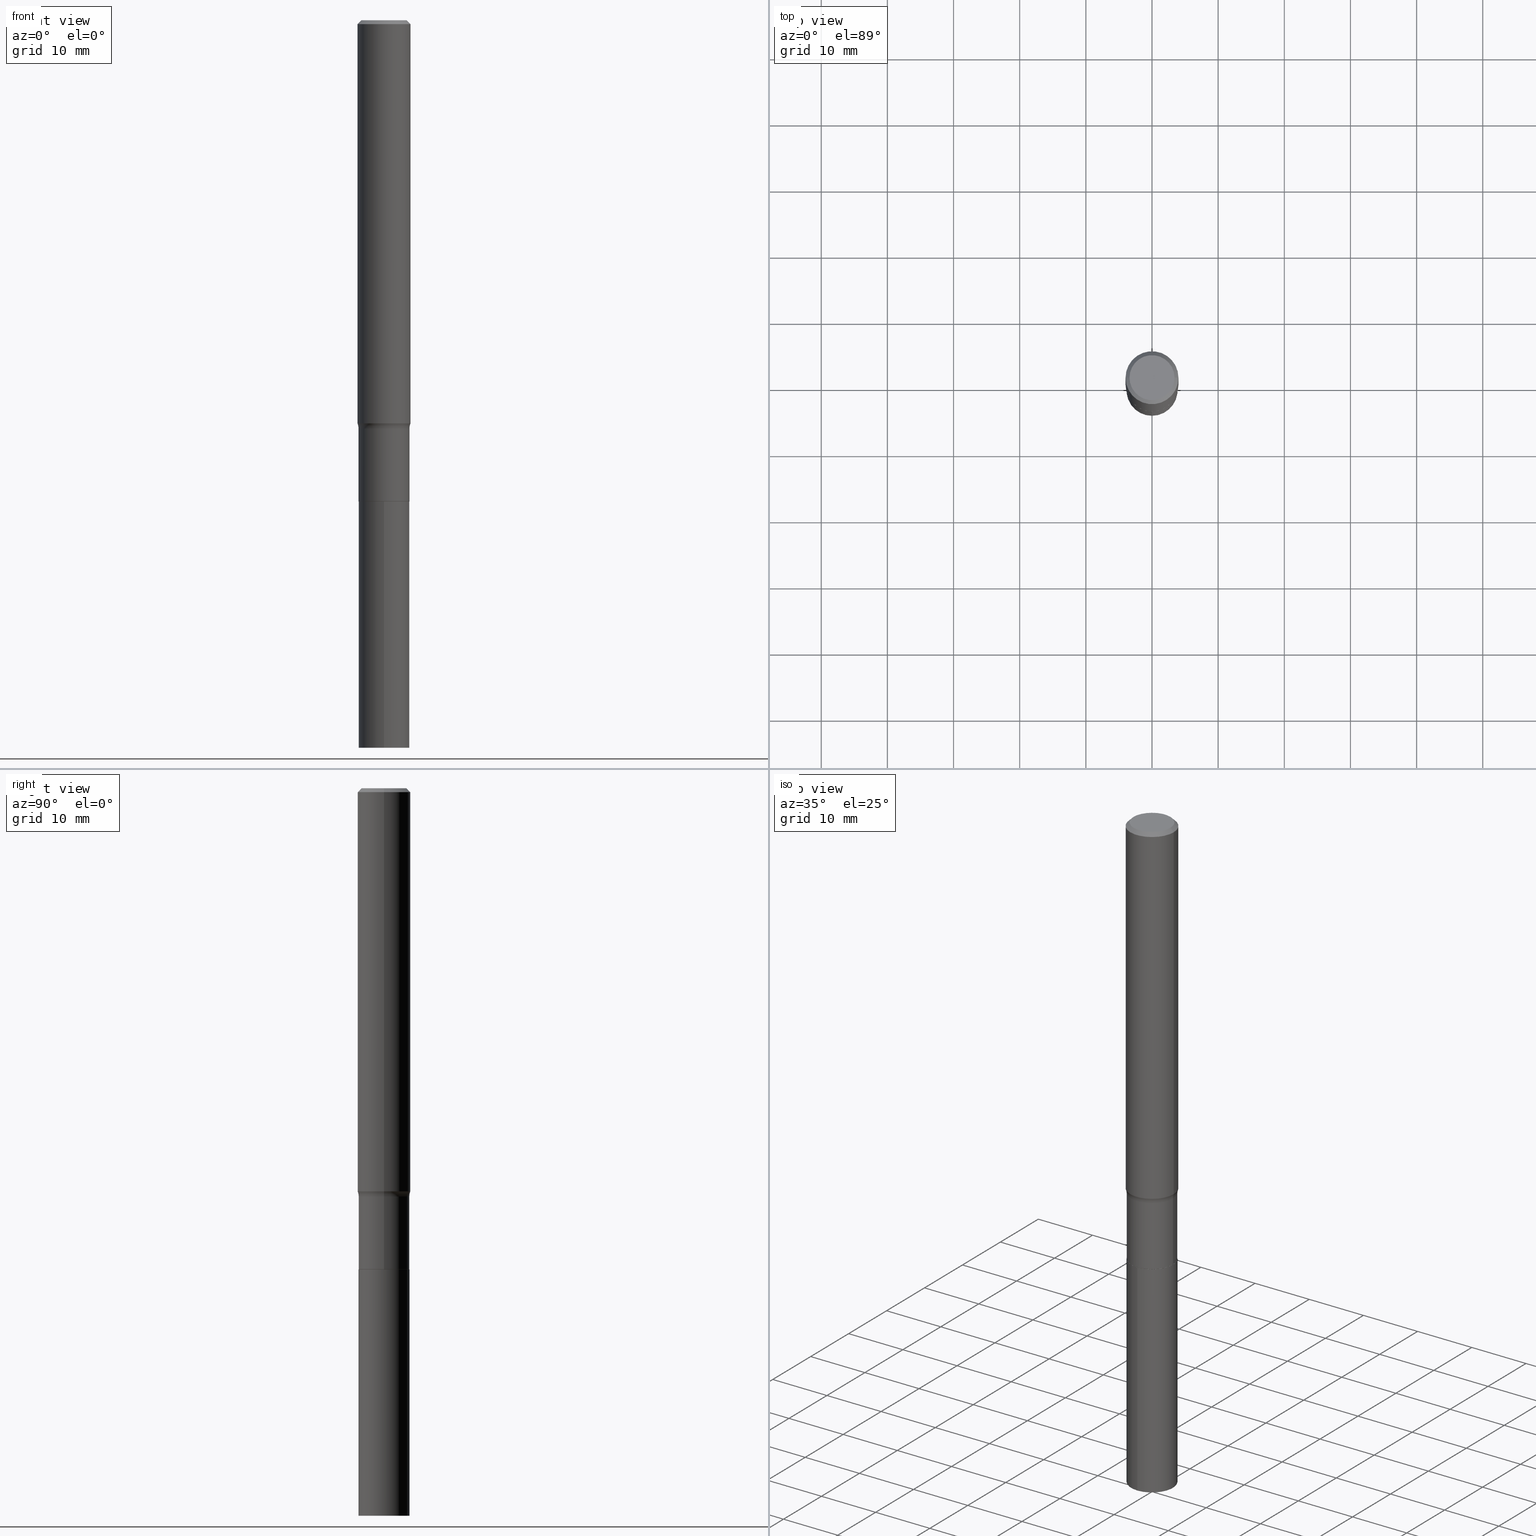
[diagram: canonical four-view strip — front | top / right | iso, engineering-drawing reading convention]
A machine part, canonical four-view strip (front | top / right | iso — engineering-drawing reading convention). The complete STEP part file that produces these views, byte-faithful:
ISO-10303-21;
HEADER;
FILE_DESCRIPTION (( 'STEP AP203' ),
    '1' );
FILE_NAME ('67865.STEP',
    '2024-04-19T16:48:36',
    ( '' ),
    ( '' ),
    'SwSTEP 2.0',
    'SolidWorks 2023',
    '' );
FILE_SCHEMA (( 'CONFIG_CONTROL_DESIGN' ));
ENDSEC;

DATA;
#1 = VERTEX_POINT ( 'NONE', #284 ) ;
#2 = DIRECTION ( 'NONE',  ( -2.445421097204986906E-29, 3.491549660818146744E-15, 1.000000000000000000 ) ) ;
#3 = ORIENTED_EDGE ( 'NONE', *, *, #176, .F. ) ;
#4 = FACE_OUTER_BOUND ( 'NONE', #205, .T. ) ;
#5 = VECTOR ( 'NONE', #112, 39.37007874015748143 ) ;
#6 = AXIS2_PLACEMENT_3D ( 'NONE', #221, #189, #115 ) ;
#7 = EDGE_LOOP ( 'NONE', ( #181, #404, #34, #164 ) ) ;
#8 = ORIENTED_EDGE ( 'NONE', *, *, #351, .F. ) ;
#9 = PLANE ( 'NONE',  #209 ) ;
#10 = MANIFOLD_SOLID_BREP ( 'Body-Move/Copy2[2]', #86 ) ;
#11 = MANIFOLD_SOLID_BREP ( 'Body-Move/Copy2[1]', #143 ) ;
#12 = DIRECTION ( 'NONE',  ( 1.000000000000000000, -6.982962677686268288E-15, 0.000000000000000000 ) ) ;
#13 = LINE ( 'NONE', #228, #144 ) ;
#14 = DIRECTION ( 'NONE',  ( 1.000000000000000000, -6.982962677686268288E-15, 0.000000000000000000 ) ) ;
#15 = CARTESIAN_POINT ( 'NONE',  ( 0.000000000000000000, 0.000000000000000000, 0.000000000000000000 ) ) ;
#16 = CARTESIAN_POINT ( 'NONE',  ( -0.1575000000000001399, 1.119104808822158787E-15, -7.747322767151482590E-30 ) ) ;
#17 = APPROVAL_STATUS ( 'not_yet_approved' ) ;
#18 = CONICAL_SURFACE ( 'NONE', #55, 0.1510499999999999898, 0.7853981633967311859 ) ;
#19 = PERSON_AND_ORGANIZATION ( #421, #420 ) ;
#20 = DATE_AND_TIME ( #380, #422 ) ;
#21 = CYLINDRICAL_SURFACE ( 'NONE', #430, 0.1515499999999999903 ) ;
#22 = ORIENTED_EDGE ( 'NONE', *, *, #362, .T. ) ;
#23 = EDGE_CURVE ( 'NONE', #253, #245, #345, .T. ) ;
#24 = DIRECTION ( 'NONE',  ( -0.7071067811860403118, 7.493145998868519270E-15, 0.7071067811870545006 ) ) ;
#25 = AXIS2_PLACEMENT_3D ( 'NONE', #182, #231, #151 ) ;
#26 = DIRECTION ( 'NONE',  ( 7.105427357601001859E-15, 1.000000000000000000, -3.491481338843145583E-15 ) ) ;
#27 = ORIENTED_EDGE ( 'NONE', *, *, #78, .F. ) ;
#28 = DIRECTION ( 'NONE',  ( -6.982962677686265922E-15, -1.000000000000000000, 3.491549660818146744E-15 ) ) ;
#29 = EDGE_CURVE ( 'NONE', #248, #220, #289, .T. ) ;
#30 = ORIENTED_EDGE ( 'NONE', *, *, #408, .T. ) ;
#31 = CYLINDRICAL_SURFACE ( 'NONE', #70, 0.1515499999999999625 ) ;
#32 = AXIS2_PLACEMENT_3D ( 'NONE', #82, #223, #361 ) ;
#33 = DIRECTION ( 'NONE',  ( -2.445468806185136597E-29, 3.491481338843145583E-15, 1.000000000000000000 ) ) ;
#34 = ORIENTED_EDGE ( 'NONE', *, *, #23, .T. ) ;
#35 = DIRECTION ( 'NONE',  ( -2.445421097204986906E-29, 3.491549660818146744E-15, 1.000000000000000000 ) ) ;
#36 = ORIENTED_EDGE ( 'NONE', *, *, #132, .T. ) ;
#37 = PRODUCT_RELATED_PRODUCT_CATEGORY ( 'detail', '', ( #208 ) ) ;
#38 = DIRECTION ( 'NONE',  ( 1.000000000000000000, 0.000000000000000000, 0.000000000000000000 ) ) ;
#39 = DIRECTION ( 'NONE',  ( 1.000000000000000000, -6.982962677686270655E-15, 0.000000000000000000 ) ) ;
#40 = AXIS2_PLACEMENT_3D ( 'NONE', #275, #204, #266 ) ;
#41 = APPROVAL_PERSON_ORGANIZATION ( #456, #433, #375 ) ;
#42 = ORIENTED_EDGE ( 'NONE', *, *, #271, .F. ) ;
#43 = FACE_OUTER_BOUND ( 'NONE', #215, .T. ) ;
#44 = EDGE_CURVE ( 'NONE', #58, #248, #218, .T. ) ;
#45 = ORIENTED_EDGE ( 'NONE', *, *, #187, .F. ) ;
#46 = DIRECTION ( 'NONE',  ( 6.982962677686265922E-15, 1.000000000000000000, -3.491549660818146744E-15 ) ) ;
#47 = LINE ( 'NONE', #241, #127 ) ;
#48 = DIRECTION ( 'NONE',  ( 1.000000000000000000, -6.982962677686264344E-15, 0.000000000000000000 ) ) ;
#49 = CIRCLE ( 'NONE', #103, 0.1575000000000002787 ) ;
#50 = SECURITY_CLASSIFICATION ( '', '', #457 ) ;
#51 = DATE_AND_TIME ( #239, #136 ) ;
#52 = APPROVAL_DATE_TIME ( #20, #214 ) ;
#53 = ADVANCED_FACE ( 'NONE', ( #222 ), #388, .T. ) ;
#54 = DATE_TIME_ROLE ( 'classification_date' ) ;
#55 = AXIS2_PLACEMENT_3D ( 'NONE', #106, #252, #389 ) ;
#56 = CALENDAR_DATE ( 2024, 19, 4 ) ;
#57 = ADVANCED_FACE ( 'NONE', ( #113 ), #183, .T. ) ;
#58 = VERTEX_POINT ( 'NONE', #442 ) ;
#59 = FACE_OUTER_BOUND ( 'NONE', #67, .T. ) ;
#60 = ORIENTED_EDGE ( 'NONE', *, *, #443, .T. ) ;
#61 = FACE_OUTER_BOUND ( 'NONE', #427, .T. ) ;
#62 = ORIENTED_EDGE ( 'NONE', *, *, #108, .F. ) ;
#63 = AXIS2_PLACEMENT_3D ( 'NONE', #360, #435, #39 ) ;
#64 = EDGE_CURVE ( 'NONE', #212, #283, #402, .T. ) ;
#65 = DIRECTION ( 'NONE',  ( -6.982962677686265922E-15, -1.000000000000000000, 3.605210153301568306E-15 ) ) ;
#66 = DIRECTION ( 'NONE',  ( 0.7071067811860403118, -2.468850131076945266E-15, 0.7071067811870545006 ) ) ;
#67 = EDGE_LOOP ( 'NONE', ( #190, #45, #105, #30 ) ) ;
#68 = DIRECTION ( 'NONE',  ( -6.982962677686266711E-15, -1.000000000000000000, 3.491481338843145583E-15 ) ) ;
#69 = ORIENTED_EDGE ( 'NONE', *, *, #78, .T. ) ;
#70 = AXIS2_PLACEMENT_3D ( 'NONE', #312, #137, #357 ) ;
#71 = CARTESIAN_POINT ( 'NONE',  ( 7.005534489078562059E-29, -1.000204659138396250E-14, -2.864700000000000912 ) ) ;
#72 = ORIENTED_EDGE ( 'NONE', *, *, #23, .F. ) ;
#73 = CC_DESIGN_DATE_AND_TIME_ASSIGNMENT ( #305, #54, ( #50 ) ) ;
#74 = DIRECTION ( 'NONE',  ( 1.000000000000000000, -6.982962677686268288E-15, 0.000000000000000000 ) ) ;
#75 = DIRECTION ( 'NONE',  ( -2.445468806185136597E-29, 3.491481338843145583E-15, 1.000000000000000000 ) ) ;
#76 = CARTESIAN_POINT ( 'NONE',  ( -1.058267993803283515E-15, -0.1515500000000099823, -2.864700000000000024 ) ) ;
#77 = CARTESIAN_POINT ( 'NONE',  ( -5.014852121625163022E-47, 7.159879756154476955E-33, 2.050671065172241055E-18 ) ) ;
#78 = EDGE_CURVE ( 'NONE', #437, #1, #324, .T. ) ;
#79 = TOROIDAL_SURFACE ( 'NONE', #32, 0.2315499999999999503, 0.08000000000000000167 ) ;
#80 = PRODUCT_DEFINITION_FORMATION_WITH_SPECIFIED_SOURCE ( 'ANY', '', #208, .NOT_KNOWN. ) ;
#81 = ORIENTED_EDGE ( 'NONE', *, *, #176, .T. ) ;
#82 = CARTESIAN_POINT ( 'NONE',  ( 5.942978292791119365E-29, -8.484997949656613578E-15, -2.430200000000000138 ) ) ;
#83 = DIRECTION ( 'NONE',  ( -2.445468806185136877E-29, 3.491481338843145188E-15, 1.000000000000000000 ) ) ;
#84 = LENGTH_MEASURE_WITH_UNIT ( LENGTH_MEASURE( 0.02539999999999999897 ), #406 );
#85 = FACE_OUTER_BOUND ( 'NONE', #7, .T. ) ;
#86 = CLOSED_SHELL ( 'NONE', ( #335, #139, #92, #415, #169, #306, #229, #379, #387, #464, #198, #53 ) ) ;
#87 = CARTESIAN_POINT ( 'NONE',  ( 0.1575000000000002232, -9.479108712492933535E-15, -2.399924638730478677 ) ) ;
#88 = VECTOR ( 'NONE', #296, 39.37007874015748143 ) ;
#89 = EDGE_CURVE ( 'NONE', #327, #133, #184, .T. ) ;
#90 = CALENDAR_DATE ( 2024, 19, 4 ) ;
#91 = PERSON_AND_ORGANIZATION ( #421, #420 ) ;
#92 = ADVANCED_FACE ( 'NONE', ( #61 ), #121, .T. ) ;
#93 = AXIS2_PLACEMENT_3D ( 'NONE', #15, #299, #38 ) ;
#94 = ORIENTED_EDGE ( 'NONE', *, *, #146, .T. ) ;
#95 = PERSON_AND_ORGANIZATION ( #421, #420 ) ;
#96 = LINE ( 'NONE', #16, #310 ) ;
#97 = UNCERTAINTY_MEASURE_WITH_UNIT (LENGTH_MEASURE( 1.000000000000000082E-05 ), #328, 'distance_accuracy_value', 'NONE');
#98 = EDGE_LOOP ( 'NONE', ( #36, #179, #8, #255 ) ) ;
#99 = DIRECTION ( 'NONE',  ( 1.000000000000000000, -6.982962677686265922E-15, 4.876176775795935232E-29 ) ) ;
#100 = VERTEX_POINT ( 'NONE', #244 ) ;
#101 = AXIS2_PLACEMENT_3D ( 'NONE', #150, #331, #458 ) ;
#102 = EDGE_CURVE ( 'NONE', #245, #253, #314, .T. ) ;
#103 = AXIS2_PLACEMENT_3D ( 'NONE', #376, #192, #14 ) ;
#104 = DIRECTION ( 'NONE',  ( -2.445468806185136597E-29, 3.491481338843145583E-15, 1.000000000000000000 ) ) ;
#105 = ORIENTED_EDGE ( 'NONE', *, *, #326, .T. ) ;
#106 = CARTESIAN_POINT ( 'NONE',  ( 7.005534489078564301E-29, -1.000204659138396408E-14, -2.864700000000001356 ) ) ;
#107 = FACE_OUTER_BOUND ( 'NONE', #294, .T. ) ;
#108 = EDGE_CURVE ( 'NONE', #1, #58, #409, .T. ) ;
#109 = ORIENTED_EDGE ( 'NONE', *, *, #108, .T. ) ;
#110 = AXIS2_PLACEMENT_3D ( 'NONE', #426, #104, #131 ) ;
#111 = DIRECTION ( 'NONE',  ( -2.445468806185136597E-29, 3.491481338843145583E-15, 1.000000000000000000 ) ) ;
#112 = DIRECTION ( 'NONE',  ( -2.445468806185136877E-29, 3.491481338843145188E-15, 1.000000000000000000 ) ) ;
#113 = FACE_OUTER_BOUND ( 'NONE', #352, .T. ) ;
#114 = CC_DESIGN_PERSON_AND_ORGANIZATION_ASSIGNMENT ( #91, #343, ( #449 ) ) ;
#115 = DIRECTION ( 'NONE',  ( -1.000000000000000000, 6.982962677686265922E-15, 0.000000000000000000 ) ) ;
#116 = ORIENTED_EDGE ( 'NONE', *, *, #394, .T. ) ;
#117 = CIRCLE ( 'NONE', #177, 0.1515499999999999903 ) ;
#118 = DIRECTION ( 'NONE',  ( -6.982962677686265922E-15, -1.000000000000000000, 3.605210153301568306E-15 ) ) ;
#119 = CARTESIAN_POINT ( 'NONE',  ( 5.942978292791119365E-29, -8.484997949656613578E-15, -2.430200000000000138 ) ) ;
#120 = ADVANCED_FACE ( 'NONE', ( #447 ), #21, .T. ) ;
#121 = CYLINDRICAL_SURFACE ( 'NONE', #101, 0.1575000000000001399 ) ;
#122 = AXIS2_PLACEMENT_3D ( 'NONE', #323, #292, #224 ) ;
#123 = CC_DESIGN_PERSON_AND_ORGANIZATION_ASSIGNMENT ( #95, #158, ( #50 ) ) ;
#124 = PERSON_AND_ORGANIZATION_ROLE ( 'design_supplier' ) ;
#125 = ORIENTED_EDGE ( 'NONE', *, *, #362, .F. ) ;
#126 = CARTESIAN_POINT ( 'NONE',  ( 7.005534489078564301E-29, -1.000204659138396408E-14, -2.864700000000001356 ) ) ;
#127 = VECTOR ( 'NONE', #452, 39.37007874015748143 ) ;
#128 = ORIENTED_EDGE ( 'NONE', *, *, #326, .F. ) ;
#129 = CARTESIAN_POINT ( 'NONE',  ( -0.1338749999999999940, 9.760872517903331886E-16, 4.101342130337800673E-18 ) ) ;
#130 = ORIENTED_EDGE ( 'NONE', *, *, #89, .T. ) ;
#131 = DIRECTION ( 'NONE',  ( 1.000000000000000000, -6.982962677686267499E-15, 4.883557194083113462E-29 ) ) ;
#132 = EDGE_CURVE ( 'NONE', #212, #100, #159, .T. ) ;
#133 = VERTEX_POINT ( 'NONE', #129 ) ;
#134 = DIRECTION ( 'NONE',  ( 1.000000000000000000, -6.982962677686268288E-15, 0.000000000000000000 ) ) ;
#135 = AXIS2_PLACEMENT_3D ( 'NONE', #216, #211, #28 ) ;
#136 = LOCAL_TIME ( 12, 48, 36.00000000000000000, #161 ) ;
#137 = DIRECTION ( 'NONE',  ( -2.445468806185136597E-29, 3.491481338843145583E-15, 1.000000000000000000 ) ) ;
#138 = ORIENTED_EDGE ( 'NONE', *, *, #339, .F. ) ;
#139 = ADVANCED_FACE ( 'NONE', ( #85 ), #200, .T. ) ;
#140 = CARTESIAN_POINT ( 'NONE',  ( 0.2315499999999999503, -1.010190295767486935E-14, -2.430200000000000138 ) ) ;
#141 = ORIENTED_EDGE ( 'NONE', *, *, #303, .F. ) ;
#142 = EDGE_LOOP ( 'NONE', ( #27, #260 ) ) ;
#143 = CLOSED_SHELL ( 'NONE', ( #120, #276, #57, #460 ) ) ;
#144 = VECTOR ( 'NONE', #267, 39.37007874015748143 ) ;
#145 = CARTESIAN_POINT ( 'NONE',  ( -0.1575000000000000011, 1.017330375105417098E-15, -0.02362500000000014241 ) ) ;
#146 = EDGE_CURVE ( 'NONE', #274, #245, #96, .T. ) ;
#147 = ORIENTED_EDGE ( 'NONE', *, *, #237, .T. ) ;
#148 = DIRECTION ( 'NONE',  ( -2.445468806185136597E-29, 3.491481338843145583E-15, 1.000000000000000000 ) ) ;
#149 = LINE ( 'NONE', #145, #448 ) ;
#150 = CARTESIAN_POINT ( 'NONE',  ( 0.000000000000000000, 0.000000000000000000, 0.000000000000000000 ) ) ;
#151 = DIRECTION ( 'NONE',  ( 1.000000000000000000, -6.982962677686265922E-15, 4.876176775795935232E-29 ) ) ;
#152 = CIRCLE ( 'NONE', #269, 0.1515499999999999348 ) ;
#153 = FACE_OUTER_BOUND ( 'NONE', #142, .T. ) ;
#154 = FACE_OUTER_BOUND ( 'NONE', #203, .T. ) ;
#155 = EDGE_CURVE ( 'NONE', #248, #58, #354, .T. ) ;
#156 = FACE_OUTER_BOUND ( 'NONE', #384, .T. ) ;
#157 = PERSON_AND_ORGANIZATION_ROLE ( 'creator' ) ;
#158 = PERSON_AND_ORGANIZATION_ROLE ( 'classification_officer' ) ;
#159 = CIRCLE ( 'NONE', #225, 0.1515499999999999903 ) ;
#160 = CC_DESIGN_APPROVAL ( #319, ( #449 ) ) ;
#161 = COORDINATED_UNIVERSAL_TIME_OFFSET ( 5, 0, .BEHIND. ) ;
#162 = CALENDAR_DATE ( 2024, 19, 4 ) ;
#163 = CARTESIAN_POINT ( 'NONE',  ( -0.1510499999999999898, -8.928771789018331833E-15, -2.864700000000001356 ) ) ;
#164 = ORIENTED_EDGE ( 'NONE', *, *, #394, .F. ) ;
#165 = CARTESIAN_POINT ( 'NONE',  ( -1.002970424325032604E-46, 1.431975951230895391E-32, 4.101342130344482109E-18 ) ) ;
#166 = VECTOR ( 'NONE', #66, 39.37007874015748854 ) ;
#167 = APPROVAL_PERSON_ORGANIZATION ( #238, #214, #417 ) ;
#168 = DIRECTION ( 'NONE',  ( -2.445421097204986906E-29, 3.491549660818146744E-15, 1.000000000000000000 ) ) ;
#169 = ADVANCED_FACE ( 'NONE', ( #156 ), #230, .T. ) ;
#170 = ORIENTED_EDGE ( 'NONE', *, *, #356, .F. ) ;
#171 = PRODUCT_DEFINITION_SHAPE ( 'NONE', 'NONE',  #449 ) ;
#172 = DIRECTION ( 'NONE',  ( 1.000000000000000000, -6.982962677686266711E-15, 4.876170806578254279E-29 ) ) ;
#173 = EDGE_LOOP ( 'NONE', ( #258, #461, #60, #259 ) ) ;
#174 = CARTESIAN_POINT ( 'NONE',  ( -1.002970424325032604E-46, 1.431975951230895391E-32, 4.101342130344482109E-18 ) ) ;
#175 = EDGE_LOOP ( 'NONE', ( #62, #147, #395, #188 ) ) ;
#176 = EDGE_CURVE ( 'NONE', #58, #386, #47, .T. ) ;
#177 = AXIS2_PLACEMENT_3D ( 'NONE', #320, #2, #287 ) ;
#178 = FACE_OUTER_BOUND ( 'NONE', #251, .T. ) ;
#179 = ORIENTED_EDGE ( 'NONE', *, *, #453, .T. ) ;
#180 = DIRECTION ( 'NONE',  ( -6.982962677686265922E-15, -1.000000000000000000, 3.605210153301568306E-15 ) ) ;
#181 = ORIENTED_EDGE ( 'NONE', *, *, #89, .F. ) ;
#182 = CARTESIAN_POINT ( 'NONE',  ( 0.000000000000000000, 0.000000000000000000, 0.000000000000000000 ) ) ;
#183 = CYLINDRICAL_SURFACE ( 'NONE', #122, 0.1515499999999999903 ) ;
#184 = CIRCLE ( 'NONE', #454, 0.1338749999999999940 ) ;
#185 = CIRCLE ( 'NONE', #262, 0.1510499999999999898 ) ;
#186 = APPLICATION_PROTOCOL_DEFINITION ( 'international standard', 'config_control_design', 1994, #338 ) ;
#187 = EDGE_CURVE ( 'NONE', #217, #274, #49, .T. ) ;
#188 = ORIENTED_EDGE ( 'NONE', *, *, #44, .F. ) ;
#189 = DIRECTION ( 'NONE',  ( 2.445468806185136597E-29, -3.491481338843145583E-15, -1.000000000000000000 ) ) ;
#190 = ORIENTED_EDGE ( 'NONE', *, *, #249, .F. ) ;
#191 = DIRECTION ( 'NONE',  ( 1.000000000000000000, -6.982962677686264344E-15, 0.000000000000000000 ) ) ;
#192 = DIRECTION ( 'NONE',  ( -2.445468806185136597E-29, 3.491481338843145583E-15, 1.000000000000000000 ) ) ;
#193 = EDGE_CURVE ( 'NONE', #386, #220, #152, .T. ) ;
#194 = CIRCLE ( 'NONE', #381, 0.08000000000000002942 ) ;
#195 = DIRECTION ( 'NONE',  ( 1.000000000000000000, -6.982962677686270655E-15, 0.000000000000000000 ) ) ;
#196 = PERSON_AND_ORGANIZATION ( #421, #420 ) ;
#197 = PERSON_AND_ORGANIZATION ( #421, #420 ) ;
#198 = ADVANCED_FACE ( 'NONE', ( #153 ), #298, .F. ) ;
#199 = APPROVAL_STATUS ( 'not_yet_approved' ) ;
#200 = CONICAL_SURFACE ( 'NONE', #466, 0.1575000000000000011, 0.7853981633974450594 ) ;
#201 = APPROVAL_STATUS ( 'not_yet_approved' ) ;
#202 = CARTESIAN_POINT ( 'NONE',  ( 0.000000000000000000, 0.000000000000000000, 0.000000000000000000 ) ) ;
#203 = EDGE_LOOP ( 'NONE', ( #210, #392 ) ) ;
#204 = DIRECTION ( 'NONE',  ( -2.445468806185136597E-29, 3.491481338843145583E-15, 1.000000000000000000 ) ) ;
#205 = EDGE_LOOP ( 'NONE', ( #138, #141, #116, #429 ) ) ;
#206 = CC_DESIGN_PERSON_AND_ORGANIZATION_ASSIGNMENT ( #197, #157, ( #80 ) ) ;
#207 = DIRECTION ( 'NONE',  ( 1.000000000000000000, -6.982962677686270655E-15, 0.000000000000000000 ) ) ;
#208 = PRODUCT ( '67865', '67865', '', ( #325 ) ) ;
#209 = AXIS2_PLACEMENT_3D ( 'NONE', #77, #291, #446 ) ;
#210 = ORIENTED_EDGE ( 'NONE', *, *, #351, .T. ) ;
#211 = DIRECTION ( 'NONE',  ( -2.445421097204986346E-29, 3.491549660818146744E-15, 1.000000000000000000 ) ) ;
#212 = VERTEX_POINT ( 'NONE', #308 ) ;
#213 = FACE_OUTER_BOUND ( 'NONE', #355, .T. ) ;
#214 = APPROVAL ( #201, 'UNSPECIFIED' ) ;
#215 = EDGE_LOOP ( 'NONE', ( #316, #342, #353, #128 ) ) ;
#216 = CARTESIAN_POINT ( 'NONE',  ( -3.119662549071756984E-30, -3.073364184503111450E-14, -4.330700000000001104 ) ) ;
#217 = VERTEX_POINT ( 'NONE', #87 ) ;
#218 = CIRCLE ( 'NONE', #412, 0.1515499999999999903 ) ;
#219 = APPROVAL_PERSON_ORGANIZATION ( #19, #319, #334 ) ;
#220 = VERTEX_POINT ( 'NONE', #236 ) ;
#221 = CARTESIAN_POINT ( 'NONE',  ( 5.777420054612421104E-31, -8.248624663016981537E-17, -0.02362500000000014241 ) ) ;
#222 = FACE_OUTER_BOUND ( 'NONE', #175, .T. ) ;
#223 = DIRECTION ( 'NONE',  ( -2.445468806185136597E-29, 3.491481338843145583E-15, 1.000000000000000000 ) ) ;
#224 = DIRECTION ( 'NONE',  ( -6.982962677686265922E-15, -1.000000000000000000, 3.605210153301568306E-15 ) ) ;
#225 = AXIS2_PLACEMENT_3D ( 'NONE', #385, #265, #300 ) ;
#226 = AXIS2_PLACEMENT_3D ( 'NONE', #71, #35, #180 ) ;
#227 = DIRECTION ( 'NONE',  ( 1.000000000000000000, -6.982962677686265922E-15, 0.000000000000000000 ) ) ;
#228 = CARTESIAN_POINT ( 'NONE',  ( 1.076827516044501577E-15, 0.1515499999999899705, -2.864700000000001356 ) ) ;
#229 = ADVANCED_FACE ( 'NONE', ( #59 ), #390, .F. ) ;
#230 = CYLINDRICAL_SURFACE ( 'NONE', #332, 0.1515499999999999625 ) ;
#231 = DIRECTION ( 'NONE',  ( -2.445468806185136597E-29, 3.491481338843145583E-15, 1.000000000000000000 ) ) ;
#232 = CARTESIAN_POINT ( 'NONE',  ( 7.005534489078562059E-29, -1.000204659138396250E-14, -2.864700000000000912 ) ) ;
#233 = APPROVAL_DATE_TIME ( #377, #319 ) ;
#234 = CIRCLE ( 'NONE', #304, 0.1515499999999999348 ) ;
#235 = LOCAL_TIME ( 12, 48, 36.00000000000000000, #336 ) ;
#236 = CARTESIAN_POINT ( 'NONE',  ( 0.1515499999999999348, -9.543265943459966118E-15, -2.430200000000000138 ) ) ;
#237 = EDGE_CURVE ( 'NONE', #1, #437, #185, .T. ) ;
#238 = PERSON_AND_ORGANIZATION ( #421, #420 ) ;
#239 = CALENDAR_DATE ( 2024, 19, 4 ) ;
#240 = LOCAL_TIME ( 12, 48, 36.00000000000000000, #414 ) ;
#241 = CARTESIAN_POINT ( 'NONE',  ( -0.1515499999999999625, 1.076827516044431565E-15, -7.454646129281306909E-30 ) ) ;
#242 = CC_DESIGN_DATE_AND_TIME_ASSIGNMENT ( #51, #419, ( #449 ) ) ;
#243 = ORIENTED_EDGE ( 'NONE', *, *, #453, .F. ) ;
#244 = CARTESIAN_POINT ( 'NONE',  ( 1.076827516044519523E-15, 0.1515499999999848635, -4.330700000000001104 ) ) ;
#245 = VERTEX_POINT ( 'NONE', #280 ) ;
#246 = CARTESIAN_POINT ( 'NONE',  ( 5.868940841210518645E-29, -8.379292090757343689E-15, -2.399924638730478677 ) ) ;
#247 = CIRCLE ( 'NONE', #347, 0.1515499999999999903 ) ;
#248 = VERTEX_POINT ( 'NONE', #250 ) ;
#249 = EDGE_CURVE ( 'NONE', #274, #386, #194, .T. ) ;
#250 = CARTESIAN_POINT ( 'NONE',  ( 0.1515499999999999903, -1.105856884451789432E-14, -2.864200000000000745 ) ) ;
#251 = EDGE_LOOP ( 'NONE', ( #3, #321, #311, #278 ) ) ;
#252 = DIRECTION ( 'NONE',  ( -2.445468806185136597E-29, 3.491481338843145583E-15, 1.000000000000000000 ) ) ;
#253 = VERTEX_POINT ( 'NONE', #350 ) ;
#254 = CARTESIAN_POINT ( 'NONE',  ( 0.1575000000000000011, -1.163014681279185964E-15, -0.02362500000000014241 ) ) ;
#255 = ORIENTED_EDGE ( 'NONE', *, *, #64, .F. ) ;
#256 = AXIS2_PLACEMENT_3D ( 'NONE', #140, #68, #434 ) ;
#257 = FACE_OUTER_BOUND ( 'NONE', #173, .T. ) ;
#258 = ORIENTED_EDGE ( 'NONE', *, *, #146, .F. ) ;
#259 = ORIENTED_EDGE ( 'NONE', *, *, #102, .F. ) ;
#260 = ORIENTED_EDGE ( 'NONE', *, *, #237, .F. ) ;
#261 = VECTOR ( 'NONE', #363, 39.37007874015748143 ) ;
#262 = AXIS2_PLACEMENT_3D ( 'NONE', #279, #111, #207 ) ;
#263 =( NAMED_UNIT ( * ) SI_UNIT ( $, .STERADIAN. ) SOLID_ANGLE_UNIT ( ) );
#264 = EDGE_CURVE ( 'NONE', #274, #217, #374, .T. ) ;
#265 = DIRECTION ( 'NONE',  ( -2.445421097204986906E-29, 3.491549660818146744E-15, 1.000000000000000000 ) ) ;
#266 = DIRECTION ( 'NONE',  ( 1.000000000000000000, -6.982962677686265922E-15, 0.000000000000000000 ) ) ;
#267 = DIRECTION ( 'NONE',  ( -2.445421097204986906E-29, 3.491549660818146744E-15, 1.000000000000000000 ) ) ;
#268 = DIRECTION ( 'NONE',  ( -2.445421097204986906E-29, 3.491549660818146744E-15, 1.000000000000000000 ) ) ;
#269 = AXIS2_PLACEMENT_3D ( 'NONE', #119, #383, #48 ) ;
#270 = CC_DESIGN_APPROVAL ( #433, ( #50 ) ) ;
#271 = EDGE_CURVE ( 'NONE', #437, #248, #393, .T. ) ;
#272 = PERSON_AND_ORGANIZATION ( #421, #420 ) ;
#273 = APPLICATION_PROTOCOL_DEFINITION ( 'international standard', 'config_control_design', 1994, #368 ) ;
#274 = VERTEX_POINT ( 'NONE', #467 ) ;
#275 = CARTESIAN_POINT ( 'NONE',  ( 5.777420054612421104E-31, -8.248624663016981537E-17, -0.02362500000000014241 ) ) ;
#276 = ADVANCED_FACE ( 'NONE', ( #213 ), #438, .F. ) ;
#277 = LOCAL_TIME ( 12, 48, 36.00000000000000000, #416 ) ;
#278 = ORIENTED_EDGE ( 'NONE', *, *, #193, .F. ) ;
#279 = CARTESIAN_POINT ( 'NONE',  ( 7.005534489078564301E-29, -1.000204659138396408E-14, -2.864700000000001356 ) ) ;
#280 = CARTESIAN_POINT ( 'NONE',  ( -0.1575000000000000011, -3.111784359871596572E-15, -0.02362500000000014241 ) ) ;
#281 = CARTESIAN_POINT ( 'NONE',  ( 0.1510499999999999898, -1.105682310384847519E-14, -2.864700000000001356 ) ) ;
#282 = CONICAL_SURFACE ( 'NONE', #6, 0.1575000000000000011, 0.7853981633974450594 ) ;
#283 = VERTEX_POINT ( 'NONE', #431 ) ;
#284 = CARTESIAN_POINT ( 'NONE',  ( -0.1510499999999999898, -8.926122561844219843E-15, -2.864700000000001356 ) ) ;
#285 = CARTESIAN_POINT ( 'NONE',  ( 0.1338749999999999940, -1.040731925365424925E-15, 4.101342130351390035E-18 ) ) ;
#286 = CARTESIAN_POINT ( 'NONE',  ( 5.777420054612421104E-31, -8.248624663016981537E-17, -0.02362500000000014241 ) ) ;
#287 = DIRECTION ( 'NONE',  ( -6.982962677686265922E-15, -1.000000000000000000, 3.605210153301568306E-15 ) ) ;
#288 = ADVANCED_BREP_SHAPE_REPRESENTATION ( '67865', ( #11, #10, #93 ), #365 ) ;
#289 = LINE ( 'NONE', #445, #5 ) ;
#290 = CIRCLE ( 'NONE', #439, 0.1338749999999999940 ) ;
#291 = DIRECTION ( 'NONE',  ( 2.438088387897960049E-29, -3.491481338843145188E-15, -1.000000000000000000 ) ) ;
#292 = DIRECTION ( 'NONE',  ( -2.445421097204986906E-29, 3.491549660818146744E-15, 1.000000000000000000 ) ) ;
#293 = CARTESIAN_POINT ( 'NONE',  ( 0.1510499999999999898, -1.105682310384847519E-14, -2.864700000000001356 ) ) ;
#294 = EDGE_LOOP ( 'NONE', ( #69, #109, #459, #42 ) ) ;
#295 = CC_DESIGN_PERSON_AND_ORGANIZATION_ASSIGNMENT ( #196, #340, ( #208 ) ) ;
#296 = DIRECTION ( 'NONE',  ( -2.445468806185136877E-29, 3.491481338843145188E-15, 1.000000000000000000 ) ) ;
#297 = DIRECTION ( 'NONE',  ( -2.445468806185136597E-29, 3.491481338843145583E-15, 1.000000000000000000 ) ) ;
#298 = PLANE ( 'NONE',  #397 ) ;
#299 = DIRECTION ( 'NONE',  ( 0.000000000000000000, 0.000000000000000000, 1.000000000000000000 ) ) ;
#300 = DIRECTION ( 'NONE',  ( -6.982962677686265922E-15, -1.000000000000000000, 3.605210153301568306E-15 ) ) ;
#301 = SHAPE_DEFINITION_REPRESENTATION ( #171, #288 ) ;
#302 = DESIGN_CONTEXT ( 'detailed design', #368, 'design' ) ;
#303 = EDGE_CURVE ( 'NONE', #133, #327, #290, .T. ) ;
#304 = AXIS2_PLACEMENT_3D ( 'NONE', #359, #75, #191 ) ;
#305 = DATE_AND_TIME ( #90, #235 ) ;
#306 = ADVANCED_FACE ( 'NONE', ( #178 ), #31, .T. ) ;
#307 = APPROVAL_DATE_TIME ( #410, #433 ) ;
#308 = CARTESIAN_POINT ( 'NONE',  ( -1.058267993803247621E-15, -0.1515500000000151171, -4.330700000000000216 ) ) ;
#309 = DIRECTION ( 'NONE',  ( 1.000000000000000000, -6.982962677686266711E-15, 4.876170806578254279E-29 ) ) ;
#310 = VECTOR ( 'NONE', #83, 39.37007874015748143 ) ;
#311 = ORIENTED_EDGE ( 'NONE', *, *, #29, .T. ) ;
#312 = CARTESIAN_POINT ( 'NONE',  ( 0.000000000000000000, 0.000000000000000000, 0.000000000000000000 ) ) ;
#313 = ORIENTED_EDGE ( 'NONE', *, *, #29, .F. ) ;
#314 = CIRCLE ( 'NONE', #40, 0.1575000000000000011 ) ;
#315 = CIRCLE ( 'NONE', #226, 0.1515499999999999903 ) ;
#316 = ORIENTED_EDGE ( 'NONE', *, *, #264, .F. ) ;
#317 = CARTESIAN_POINT ( 'NONE',  ( -0.2315499999999999503, -6.839736245004101359E-15, -2.430200000000000138 ) ) ;
#318 = ORIENTED_EDGE ( 'NONE', *, *, #155, .T. ) ;
#319 = APPROVAL ( #17, 'UNSPECIFIED' ) ;
#320 = CARTESIAN_POINT ( 'NONE',  ( 1.059052181758107427E-28, -1.512065839414336504E-14, -4.330700000000001104 ) ) ;
#321 = ORIENTED_EDGE ( 'NONE', *, *, #44, .T. ) ;
#322 = DIRECTION ( 'NONE',  ( -0.7071067811865452413, 2.468850131082233000E-15, -0.7071067811865497932 ) ) ;
#323 = CARTESIAN_POINT ( 'NONE',  ( 7.005534489078562059E-29, -1.000204659138396250E-14, -2.864700000000000912 ) ) ;
#324 = CIRCLE ( 'NONE', #465, 0.1510499999999999898 ) ;
#325 = MECHANICAL_CONTEXT ( 'NONE', #338, 'mechanical' ) ;
#326 = EDGE_CURVE ( 'NONE', #217, #220, #432, .T. ) ;
#327 = VERTEX_POINT ( 'NONE', #285 ) ;
#328 =( CONVERSION_BASED_UNIT ( 'INCH', #84 ) LENGTH_UNIT ( ) NAMED_UNIT ( #424 ) );
#329 = DIRECTION ( 'NONE',  ( -2.445468806185136597E-29, 3.491481338843145583E-15, 1.000000000000000000 ) ) ;
#330 = CARTESIAN_POINT ( 'NONE',  ( 0.1575000000000001399, -1.099816621735587875E-15, 7.679978421878605039E-30 ) ) ;
#331 = DIRECTION ( 'NONE',  ( -2.445468806185136597E-29, 3.491481338843145583E-15, 1.000000000000000000 ) ) ;
#332 = AXIS2_PLACEMENT_3D ( 'NONE', #202, #370, #99 ) ;
#333 = CARTESIAN_POINT ( 'NONE',  ( 5.777420054612421104E-31, -8.248624663016981537E-17, -0.02362500000000014241 ) ) ;
#334 = APPROVAL_ROLE ( '' ) ;
#335 = ADVANCED_FACE ( 'NONE', ( #107 ), #18, .T. ) ;
#336 = COORDINATED_UNIVERSAL_TIME_OFFSET ( 5, 0, .BEHIND. ) ;
#337 = AXIS2_PLACEMENT_3D ( 'NONE', #372, #329, #12 ) ;
#338 = APPLICATION_CONTEXT ( 'configuration controlled 3d designs of mechanical parts and assemblies' ) ;
#339 = EDGE_CURVE ( 'NONE', #327, #253, #436, .T. ) ;
#340 = PERSON_AND_ORGANIZATION_ROLE ( 'design_owner' ) ;
#341 = CARTESIAN_POINT ( 'NONE',  ( -2.302340413970851974E-30, -2.036407896139391284E-14, -2.864700000000000912 ) ) ;
#342 = ORIENTED_EDGE ( 'NONE', *, *, #249, .T. ) ;
#343 = PERSON_AND_ORGANIZATION_ROLE ( 'creator' ) ;
#344 = DIRECTION ( 'NONE',  ( -2.445468806185136597E-29, 3.491481338843145583E-15, 1.000000000000000000 ) ) ;
#345 = CIRCLE ( 'NONE', #418, 0.1575000000000000011 ) ;
#346 = DIRECTION ( 'NONE',  ( -1.000000000000000000, 7.105427357600995548E-15, 0.000000000000000000 ) ) ;
#347 = AXIS2_PLACEMENT_3D ( 'NONE', #396, #168, #65 ) ;
#348 = CC_DESIGN_SECURITY_CLASSIFICATION ( #50, ( #80 ) ) ;
#349 = ORIENTED_EDGE ( 'NONE', *, *, #64, .T. ) ;
#350 = CARTESIAN_POINT ( 'NONE',  ( 0.1575000000000000011, -1.182302868365756679E-15, -0.02362500000000014241 ) ) ;
#351 = EDGE_CURVE ( 'NONE', #283, #468, #247, .T. ) ;
#352 = EDGE_LOOP ( 'NONE', ( #243, #22, #349, #170 ) ) ;
#353 = ORIENTED_EDGE ( 'NONE', *, *, #193, .T. ) ;
#354 = CIRCLE ( 'NONE', #337, 0.1515499999999999903 ) ;
#355 = EDGE_LOOP ( 'NONE', ( #440, #125 ) ) ;
#356 = EDGE_CURVE ( 'NONE', #468, #283, #315, .T. ) ;
#357 = DIRECTION ( 'NONE',  ( 1.000000000000000000, -6.982962677686265922E-15, 4.876176775795935232E-29 ) ) ;
#358 = ORIENTED_EDGE ( 'NONE', *, *, #303, .T. ) ;
#359 = CARTESIAN_POINT ( 'NONE',  ( 5.942978292791119365E-29, -8.484997949656613578E-15, -2.430200000000000138 ) ) ;
#360 = CARTESIAN_POINT ( 'NONE',  ( 7.005534489078564301E-29, -1.000204659138396408E-14, -2.864700000000001356 ) ) ;
#361 = DIRECTION ( 'NONE',  ( 1.000000000000000000, -6.982962677686267499E-15, 4.883557194083113462E-29 ) ) ;
#362 = EDGE_CURVE ( 'NONE', #100, #212, #117, .T. ) ;
#363 = DIRECTION ( 'NONE',  ( -2.445421097204986906E-29, 3.491549660818146744E-15, 1.000000000000000000 ) ) ;
#364 = VECTOR ( 'NONE', #24, 39.37007874015748854 ) ;
#365 =( GEOMETRIC_REPRESENTATION_CONTEXT ( 3 ) GLOBAL_UNCERTAINTY_ASSIGNED_CONTEXT ( ( #97 ) ) GLOBAL_UNIT_ASSIGNED_CONTEXT ( ( #328, #371, #263 ) ) REPRESENTATION_CONTEXT ( 'NONE', 'WORKASPACE' ) );
#366 = LINE ( 'NONE', #330, #88 ) ;
#367 = ORIENTED_EDGE ( 'NONE', *, *, #187, .T. ) ;
#368 = APPLICATION_CONTEXT ( 'configuration controlled 3d designs of mechanical parts and assemblies' ) ;
#369 = FACE_OUTER_BOUND ( 'NONE', #425, .T. ) ;
#370 = DIRECTION ( 'NONE',  ( -2.445468806185136597E-29, 3.491481338843145583E-15, 1.000000000000000000 ) ) ;
#371 =( NAMED_UNIT ( * ) PLANE_ANGLE_UNIT ( ) SI_UNIT ( $, .RADIAN. ) );
#372 = CARTESIAN_POINT ( 'NONE',  ( 7.004311754675469257E-29, -1.000030085071454021E-14, -2.864200000000000745 ) ) ;
#373 = CC_DESIGN_PERSON_AND_ORGANIZATION_ASSIGNMENT ( #272, #124, ( #80 ) ) ;
#374 = CIRCLE ( 'NONE', #405, 0.1575000000000002787 ) ;
#375 = APPROVAL_ROLE ( '' ) ;
#376 = CARTESIAN_POINT ( 'NONE',  ( 5.868940841210518645E-29, -8.379292090757343689E-15, -2.399924638730478677 ) ) ;
#377 = DATE_AND_TIME ( #56, #277 ) ;
#378 = COORDINATED_UNIVERSAL_TIME_OFFSET ( 5, 0, .BEHIND. ) ;
#379 = ADVANCED_FACE ( 'NONE', ( #257 ), #399, .T. ) ;
#380 = CALENDAR_DATE ( 2024, 19, 4 ) ;
#381 = AXIS2_PLACEMENT_3D ( 'NONE', #317, #26, #346 ) ;
#382 = ORIENTED_EDGE ( 'NONE', *, *, #408, .F. ) ;
#383 = DIRECTION ( 'NONE',  ( -2.445468806185136597E-29, 3.491481338843145583E-15, 1.000000000000000000 ) ) ;
#384 = EDGE_LOOP ( 'NONE', ( #318, #81, #382, #313 ) ) ;
#385 = CARTESIAN_POINT ( 'NONE',  ( 1.059052181758107427E-28, -1.512065839414336504E-14, -4.330700000000001104 ) ) ;
#386 = VERTEX_POINT ( 'NONE', #451 ) ;
#387 = ADVANCED_FACE ( 'NONE', ( #4 ), #282, .T. ) ;
#388 = CONICAL_SURFACE ( 'NONE', #63, 0.1510499999999999898, 0.7853981633967311859 ) ;
#389 = DIRECTION ( 'NONE',  ( 1.000000000000000000, -6.982962677686270655E-15, 0.000000000000000000 ) ) ;
#390 = TOROIDAL_SURFACE ( 'NONE', #110, 0.2315499999999999503, 0.08000000000000000167 ) ;
#391 = CC_DESIGN_APPROVAL ( #214, ( #80 ) ) ;
#392 = ORIENTED_EDGE ( 'NONE', *, *, #356, .T. ) ;
#393 = LINE ( 'NONE', #281, #166 ) ;
#394 = EDGE_CURVE ( 'NONE', #133, #245, #149, .T. ) ;
#395 = ORIENTED_EDGE ( 'NONE', *, *, #271, .T. ) ;
#396 = CARTESIAN_POINT ( 'NONE',  ( 7.005534489078562059E-29, -1.000204659138396250E-14, -2.864700000000000912 ) ) ;
#397 = AXIS2_PLACEMENT_3D ( 'NONE', #341, #411, #450 ) ;
#398 = DIRECTION ( 'NONE',  ( -2.445468806185136597E-29, 3.491481338843145583E-15, 1.000000000000000000 ) ) ;
#399 = CYLINDRICAL_SURFACE ( 'NONE', #25, 0.1575000000000001399 ) ;
#400 = CARTESIAN_POINT ( 'NONE',  ( 7.004311754675469257E-29, -1.000030085071454021E-14, -2.864200000000000745 ) ) ;
#401 = CARTESIAN_POINT ( 'NONE',  ( 7.005534489078562059E-29, -1.000204659138396250E-14, -2.864700000000000912 ) ) ;
#402 = LINE ( 'NONE', #76, #261 ) ;
#403 = DIRECTION ( 'NONE',  ( 2.445421097204986346E-29, -3.491549660818146744E-15, -1.000000000000000000 ) ) ;
#404 = ORIENTED_EDGE ( 'NONE', *, *, #339, .T. ) ;
#405 = AXIS2_PLACEMENT_3D ( 'NONE', #246, #462, #134 ) ;
#406 =( LENGTH_UNIT ( ) NAMED_UNIT ( * ) SI_UNIT ( $, .METRE. ) );
#407 = DIRECTION ( 'NONE',  ( -1.000000000000000000, 6.982962677686265922E-15, 0.000000000000000000 ) ) ;
#408 = EDGE_CURVE ( 'NONE', #220, #386, #234, .T. ) ;
#409 = LINE ( 'NONE', #163, #364 ) ;
#410 = DATE_AND_TIME ( #162, #240 ) ;
#411 = DIRECTION ( 'NONE',  ( -2.438088387897960049E-29, 3.491481338843145188E-15, 1.000000000000000000 ) ) ;
#412 = AXIS2_PLACEMENT_3D ( 'NONE', #400, #148, #74 ) ;
#413 = AXIS2_PLACEMENT_3D ( 'NONE', #401, #403, #46 ) ;
#414 = COORDINATED_UNIVERSAL_TIME_OFFSET ( 5, 0, .BEHIND. ) ;
#415 = ADVANCED_FACE ( 'NONE', ( #43 ), #79, .F. ) ;
#416 = COORDINATED_UNIVERSAL_TIME_OFFSET ( 5, 0, .BEHIND. ) ;
#417 = APPROVAL_ROLE ( '' ) ;
#418 = AXIS2_PLACEMENT_3D ( 'NONE', #286, #398, #227 ) ;
#419 = DATE_TIME_ROLE ( 'creation_date' ) ;
#420 = ORGANIZATION ( 'UNSPECIFIED', 'UNSPECIFIED', '' ) ;
#421 = PERSON ( 'UNSPECIFIED', 'UNSPECIFIED', 'UNSPECIFIED', ('UNSPECIFIED'), ('UNSPECIFIED'), ('UNSPECIFIED') ) ;
#422 = LOCAL_TIME ( 12, 48, 36.00000000000000000, #378 ) ;
#423 = DIRECTION ( 'NONE',  ( 2.445468806185136597E-29, -3.491481338843145583E-15, -1.000000000000000000 ) ) ;
#424 = DIMENSIONAL_EXPONENTS ( 1.000000000000000000, 0.000000000000000000, 0.000000000000000000, 0.000000000000000000, 0.000000000000000000, 0.000000000000000000, 0.000000000000000000 ) ;
#425 = EDGE_LOOP ( 'NONE', ( #358, #130 ) ) ;
#426 = CARTESIAN_POINT ( 'NONE',  ( 5.942978292791119365E-29, -8.484997949656613578E-15, -2.430200000000000138 ) ) ;
#427 = EDGE_LOOP ( 'NONE', ( #367, #94, #72, #463 ) ) ;
#428 = DIRECTION ( 'NONE',  ( 0.7071067811865452413, -7.319954787623248157E-15, -0.7071067811865497932 ) ) ;
#429 = ORIENTED_EDGE ( 'NONE', *, *, #102, .T. ) ;
#430 = AXIS2_PLACEMENT_3D ( 'NONE', #232, #268, #118 ) ;
#431 = CARTESIAN_POINT ( 'NONE',  ( -1.058267993803283515E-15, -0.1515500000000099823, -2.864700000000000024 ) ) ;
#432 = CIRCLE ( 'NONE', #256, 0.08000000000000002942 ) ;
#433 = APPROVAL ( #199, 'UNSPECIFIED' ) ;
#434 = DIRECTION ( 'NONE',  ( 1.000000000000000000, -6.982962677686257244E-15, 0.000000000000000000 ) ) ;
#435 = DIRECTION ( 'NONE',  ( -2.445468806185136597E-29, 3.491481338843145583E-15, 1.000000000000000000 ) ) ;
#436 = LINE ( 'NONE', #254, #455 ) ;
#437 = VERTEX_POINT ( 'NONE', #293 ) ;
#438 = PLANE ( 'NONE',  #135 ) ;
#439 = AXIS2_PLACEMENT_3D ( 'NONE', #174, #33, #172 ) ;
#440 = ORIENTED_EDGE ( 'NONE', *, *, #132, .F. ) ;
#441 = CARTESIAN_POINT ( 'NONE',  ( 1.076827516044537667E-15, 0.1515499999999899705, -2.864700000000001356 ) ) ;
#442 = CARTESIAN_POINT ( 'NONE',  ( -0.1515499999999999903, -8.165821884141145327E-15, -2.864200000000000745 ) ) ;
#443 = EDGE_CURVE ( 'NONE', #217, #253, #366, .T. ) ;
#444 = PLANE ( 'NONE',  #413 ) ;
#445 = CARTESIAN_POINT ( 'NONE',  ( 0.1515499999999999625, -1.058267993803353329E-15, 7.389845903718738166E-30 ) ) ;
#446 = DIRECTION ( 'NONE',  ( -1.000000000000000000, 6.982962677686265922E-15, -4.876176775795935793E-29 ) ) ;
#447 = FACE_OUTER_BOUND ( 'NONE', #98, .T. ) ;
#448 = VECTOR ( 'NONE', #322, 39.37007874015748143 ) ;
#449 = PRODUCT_DEFINITION ( 'UNKNOWN', '', #80, #302 ) ;
#450 = DIRECTION ( 'NONE',  ( 1.000000000000000000, -6.982962677686265922E-15, 4.876176775795935793E-29 ) ) ;
#451 = CARTESIAN_POINT ( 'NONE',  ( -0.1515499999999999348, -8.165821884141145327E-15, -2.430200000000000138 ) ) ;
#452 = DIRECTION ( 'NONE',  ( -2.445468806185136877E-29, 3.491481338843145188E-15, 1.000000000000000000 ) ) ;
#453 = EDGE_CURVE ( 'NONE', #100, #468, #13, .T. ) ;
#454 = AXIS2_PLACEMENT_3D ( 'NONE', #165, #297, #309 ) ;
#455 = VECTOR ( 'NONE', #428, 39.37007874015748143 ) ;
#456 = PERSON_AND_ORGANIZATION ( #421, #420 ) ;
#457 = SECURITY_CLASSIFICATION_LEVEL ( 'unclassified' ) ;
#458 = DIRECTION ( 'NONE',  ( 1.000000000000000000, -6.982962677686265922E-15, 4.876176775795935232E-29 ) ) ;
#459 = ORIENTED_EDGE ( 'NONE', *, *, #155, .F. ) ;
#460 = ADVANCED_FACE ( 'NONE', ( #154 ), #444, .F. ) ;
#461 = ORIENTED_EDGE ( 'NONE', *, *, #264, .T. ) ;
#462 = DIRECTION ( 'NONE',  ( -2.445468806185136597E-29, 3.491481338843145583E-15, 1.000000000000000000 ) ) ;
#463 = ORIENTED_EDGE ( 'NONE', *, *, #443, .F. ) ;
#464 = ADVANCED_FACE ( 'NONE', ( #369 ), #9, .F. ) ;
#465 = AXIS2_PLACEMENT_3D ( 'NONE', #126, #344, #195 ) ;
#466 = AXIS2_PLACEMENT_3D ( 'NONE', #333, #423, #407 ) ;
#467 = CARTESIAN_POINT ( 'NONE',  ( -0.1575000000000002232, -7.260187281935184507E-15, -2.399924638730478677 ) ) ;
#468 = VERTEX_POINT ( 'NONE', #441 ) ;
ENDSEC;
END-ISO-10303-21;
